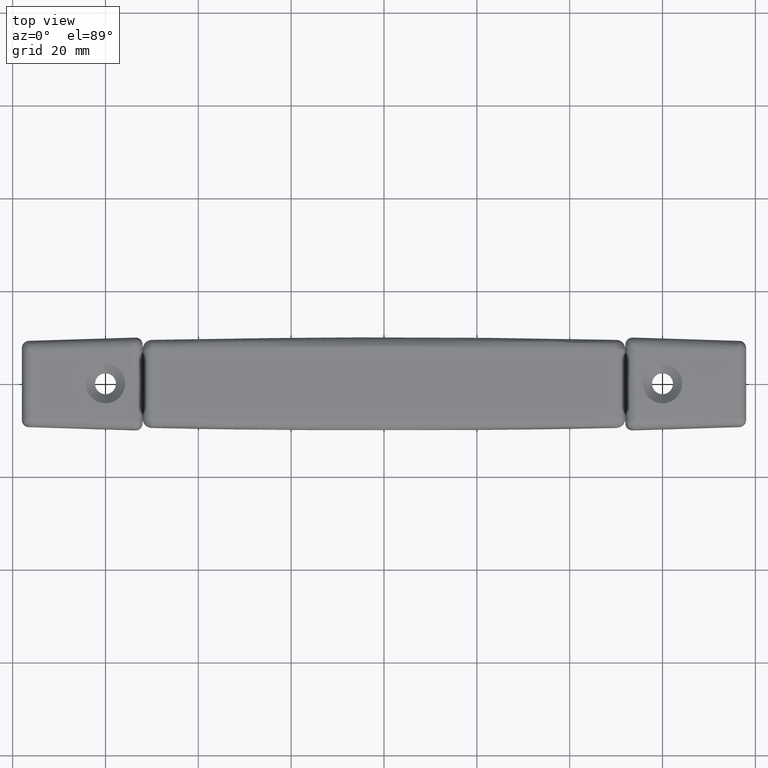
[diagram: clean part render]
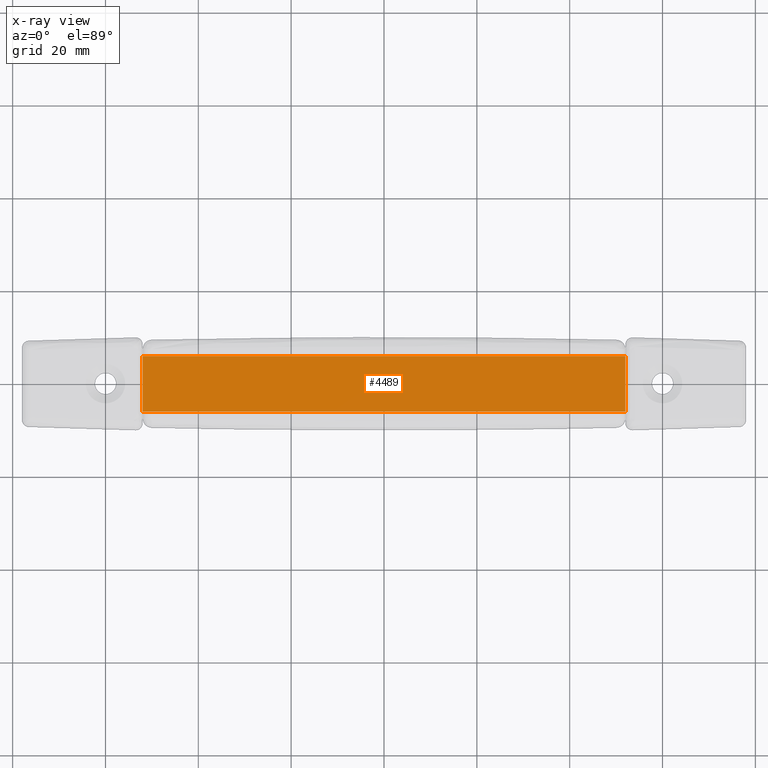
[diagram: x-ray — body ghosted, one internal face saturated and labeled with its STEP entity id]
A machine part, top view, then the same camera in x-ray: the body is ghosted and one INTERNAL B-rep face — a face not visible from any outside direction — is saturated and labeled: STEP entity #4489.
In plain terms, the highlighted face is a freeform B-spline surface patch.
Its self-contained STEP definition (entity closure, byte-faithful):
#4120=CARTESIAN_POINT('',(-51.999600000000001,6.0,4.0));
#4121=VERTEX_POINT('',#4120);
#4127=CARTESIAN_POINT('',(-51.999600000000001,-6.0,4.0));
#4128=VERTEX_POINT('',#4127);
#4129=CARTESIAN_POINT('',(-51.999600000000001,6.0,4.0));
#4130=CARTESIAN_POINT('',(-51.999600000000001,-6.0,4.0));
#4131=QUASI_UNIFORM_CURVE('',1,(#4129,#4130),.UNSPECIFIED.,.F.,.U.);
#4132=EDGE_CURVE('',#4121,#4128,#4131,.T.);
#4431=CARTESIAN_POINT('',(52.0,-6.0,4.0));
#4432=VERTEX_POINT('',#4431);
#4433=CARTESIAN_POINT('',(52.0,-6.0,4.0));
#4434=CARTESIAN_POINT('',(-51.999600000000001,-6.0,4.0));
#4435=QUASI_UNIFORM_CURVE('',1,(#4433,#4434),.UNSPECIFIED.,.F.,.U.);
#4436=EDGE_CURVE('',#4432,#4128,#4435,.T.);
#4458=CARTESIAN_POINT('',(52.0,6.0,4.0));
#4459=VERTEX_POINT('',#4458);
#4465=CARTESIAN_POINT('',(52.0,6.0,4.0));
#4466=CARTESIAN_POINT('',(-51.999600000000001,6.0,4.0));
#4467=QUASI_UNIFORM_CURVE('',1,(#4465,#4466),.UNSPECIFIED.,.F.,.U.);
#4468=EDGE_CURVE('',#4459,#4121,#4467,.T.);
#4474=CARTESIAN_POINT('',(-57.194379818428587,-6.599399976741672,4.0));
#4475=CARTESIAN_POINT('',(57.194782607915243,-6.599399976741672,4.0));
#4476=CARTESIAN_POINT('',(-57.194379818428587,6.599400298606754,4.0));
#4477=CARTESIAN_POINT('',(57.194782607915243,6.599400298606754,4.0));
#4478=B_SPLINE_SURFACE_WITH_KNOTS('',1,1,((#4474,#4476),(#4475,#4477)),.UNSPECIFIED.,.F.,.F.,.U.,(2,2),(2,2),(0.0,114.389162426343800),(0.0,13.198800275348431),.UNSPECIFIED.);
#4479=ORIENTED_EDGE('',*,*,#4436,.T.);
#4480=ORIENTED_EDGE('',*,*,#4132,.F.);
#4481=ORIENTED_EDGE('',*,*,#4468,.F.);
#4482=CARTESIAN_POINT('',(52.0,6.0,4.0));
#4483=CARTESIAN_POINT('',(52.0,-6.0,4.0));
#4484=QUASI_UNIFORM_CURVE('',1,(#4482,#4483),.UNSPECIFIED.,.F.,.U.);
#4485=EDGE_CURVE('',#4459,#4432,#4484,.T.);
#4486=ORIENTED_EDGE('',*,*,#4485,.T.);
#4487=EDGE_LOOP('',(#4479,#4480,#4481,#4486));
#4488=FACE_OUTER_BOUND('',#4487,.T.);
#4489=ADVANCED_FACE('',(#4488),#4478,.F.);